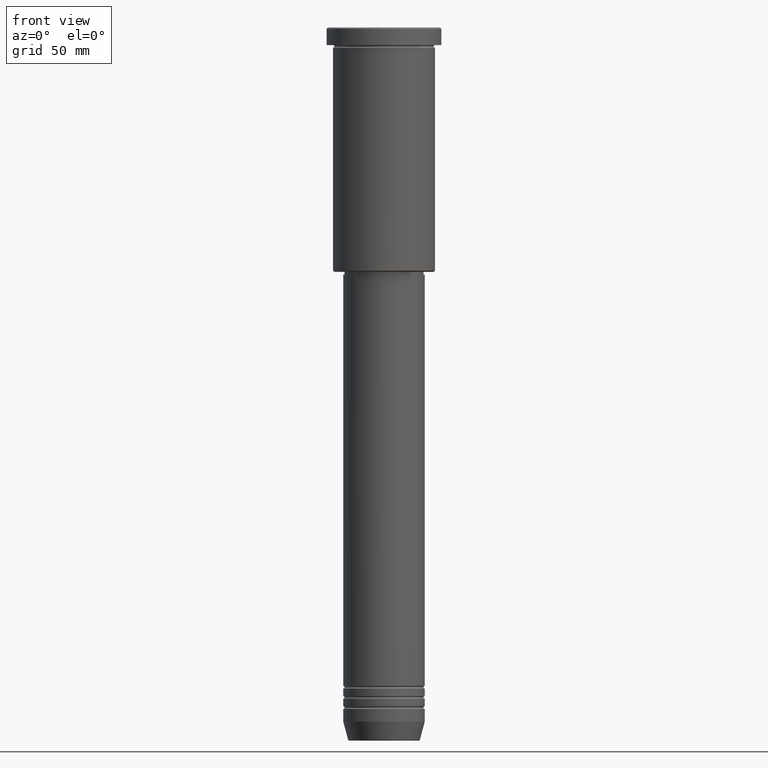
[diagram: clean part render]
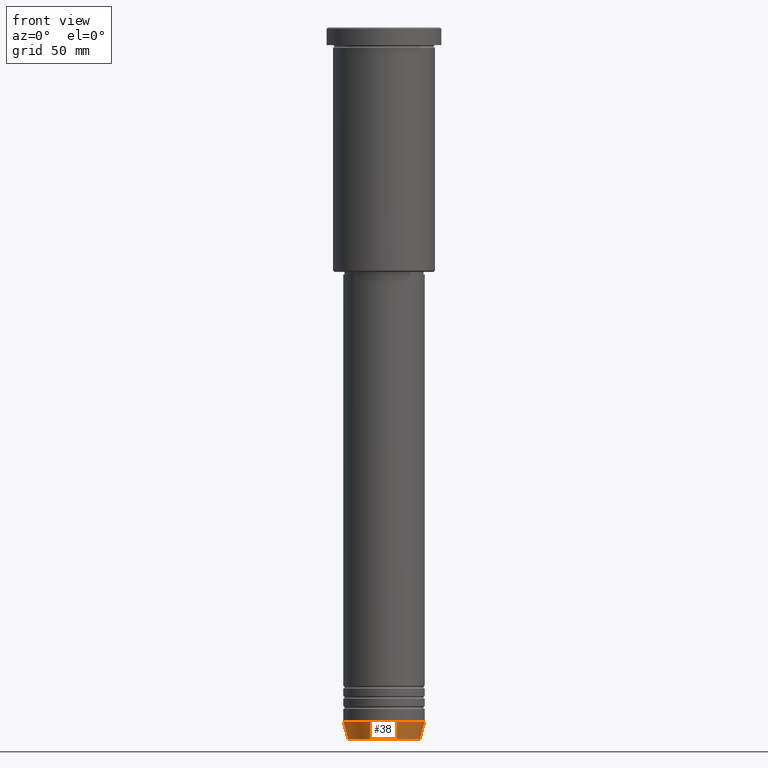
[diagram: same view with one face highlighted and labeled with its STEP entity id]
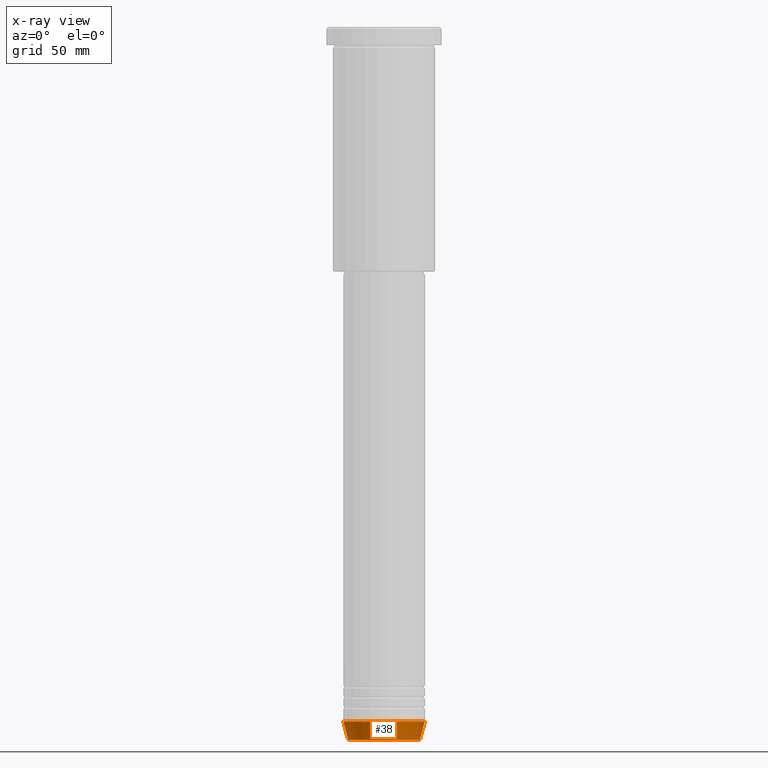
[diagram: x-ray of the same camera — body ghosted, the highlighted face saturated]
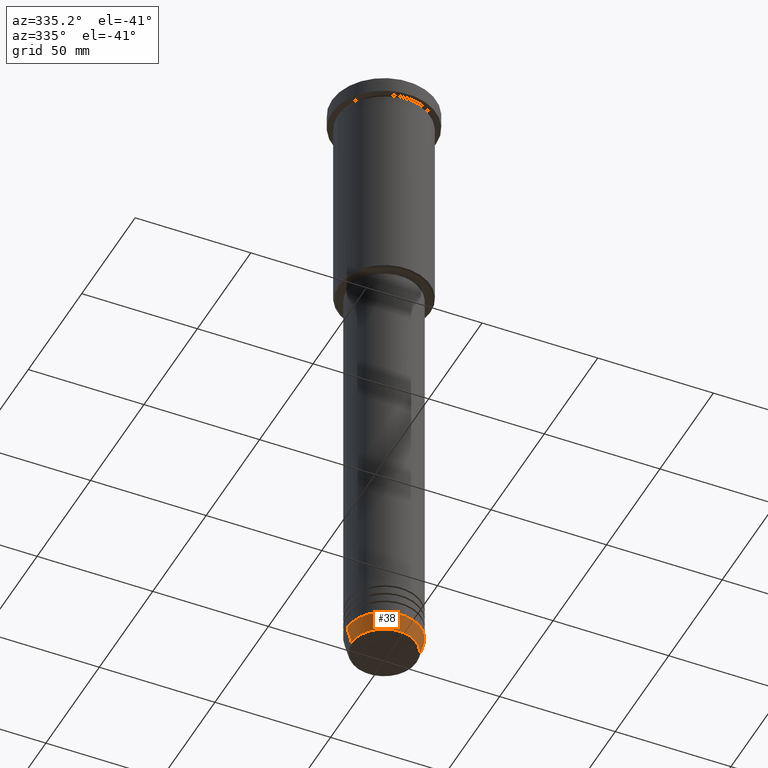
[diagram: same view with one face highlighted and labeled with its STEP entity id]
A machine part, front view. The second image highlights one B-rep face of the part: STEP entity #38.
The next image is the same camera in x-ray: the body ghosted, the highlighted face saturated — about 0% of this face is hidden behind the body in this view.
A second angle (auxiliary view) of the same face is appended — the face is thin or edge-on in the first view.
In plain terms, the highlighted conical surface has half-angle 15 deg.
Its self-contained STEP definition (entity closure, byte-faithful):
#13 = VECTOR ( 'NONE', #952, 1000.000000000000000 ) ;
#14 = CARTESIAN_POINT ( 'NONE',  ( -16.00000000000000000, 1.959434878635765131E-15, -272.5000000000000000 ) ) ;
#38 = ADVANCED_FACE ( 'NONE', ( #453 ), #936, .T. ) ;
#91 = VERTEX_POINT ( 'NONE', #217 ) ;
#119 = DIRECTION ( 'NONE',  ( 1.000000000000000000, 0.000000000000000000, 0.000000000000000000 ) ) ;
#213 = CIRCLE ( 'NONE', #455, 14.08968047592161632 ) ;
#216 = VERTEX_POINT ( 'NONE', #887 ) ;
#217 = CARTESIAN_POINT ( 'NONE',  ( -14.08968047592161632, 1.842461544110200874E-15, -279.6294095225512706 ) ) ;
#249 = CIRCLE ( 'NONE', #665, 16.00000000000000000 ) ;
#310 = CARTESIAN_POINT ( 'NONE',  ( 0.000000000000000000, 0.000000000000000000, -272.5000000000000000 ) ) ;
#349 = CARTESIAN_POINT ( 'NONE',  ( 14.08968047592161632, 0.000000000000000000, -279.6294095225512706 ) ) ;
#356 = DIRECTION ( 'NONE',  ( -0.000000000000000000, -0.000000000000000000, 1.000000000000000000 ) ) ;
#381 = CARTESIAN_POINT ( 'NONE',  ( 0.000000000000000000, 0.000000000000000000, -272.5000000000000000 ) ) ;
#386 = AXIS2_PLACEMENT_3D ( 'NONE', #381, #356, #811 ) ;
#390 = LINE ( 'NONE', #478, #13 ) ;
#403 = DIRECTION ( 'NONE',  ( 1.000000000000000000, 0.000000000000000000, 0.000000000000000000 ) ) ;
#441 = EDGE_CURVE ( 'NONE', #91, #216, #810, .T. ) ;
#453 = FACE_OUTER_BOUND ( 'NONE', #701, .T. ) ;
#455 = AXIS2_PLACEMENT_3D ( 'NONE', #747, #929, #119 ) ;
#469 = ORIENTED_EDGE ( 'NONE', *, *, #976, .T. ) ;
#478 = CARTESIAN_POINT ( 'NONE',  ( 16.00000000000000000, 0.000000000000000000, -272.5000000000000000 ) ) ;
#488 = ORIENTED_EDGE ( 'NONE', *, *, #441, .F. ) ;
#590 = VERTEX_POINT ( 'NONE', #349 ) ;
#665 = AXIS2_PLACEMENT_3D ( 'NONE', #310, #666, #403 ) ;
#666 = DIRECTION ( 'NONE',  ( -0.000000000000000000, -0.000000000000000000, 1.000000000000000000 ) ) ;
#669 = ORIENTED_EDGE ( 'NONE', *, *, #975, .T. ) ;
#701 = EDGE_LOOP ( 'NONE', ( #488, #469, #669, #902 ) ) ;
#747 = CARTESIAN_POINT ( 'NONE',  ( 0.000000000000000000, 0.000000000000000000, -279.6294095225512706 ) ) ;
#810 = LINE ( 'NONE', #14, #1182 ) ;
#811 = DIRECTION ( 'NONE',  ( 1.000000000000000000, 0.000000000000000000, 0.000000000000000000 ) ) ;
#887 = CARTESIAN_POINT ( 'NONE',  ( -16.00000000000000000, 1.959434878635765131E-15, -272.5000000000000000 ) ) ;
#902 = ORIENTED_EDGE ( 'NONE', *, *, #1025, .F. ) ;
#929 = DIRECTION ( 'NONE',  ( -0.000000000000000000, -0.000000000000000000, 1.000000000000000000 ) ) ;
#936 = CONICAL_SURFACE ( 'NONE', #386, 16.00000000000000000, 0.2617993877991500740 ) ;
#952 = DIRECTION ( 'NONE',  ( 0.2588190451025213501, 0.000000000000000000, 0.9659258262890680902 ) ) ;
#975 = EDGE_CURVE ( 'NONE', #590, #1118, #390, .T. ) ;
#976 = EDGE_CURVE ( 'NONE', #91, #590, #213, .T. ) ;
#1025 = EDGE_CURVE ( 'NONE', #216, #1118, #249, .T. ) ;
#1082 = CARTESIAN_POINT ( 'NONE',  ( 16.00000000000000000, 0.000000000000000000, -272.5000000000000000 ) ) ;
#1118 = VERTEX_POINT ( 'NONE', #1082 ) ;
#1177 = DIRECTION ( 'NONE',  ( -0.2588190451025213501, 3.169619151431772337E-17, 0.9659258262890680902 ) ) ;
#1182 = VECTOR ( 'NONE', #1177, 1000.000000000000000 ) ;